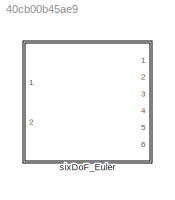
MODEL slx_40cb00b45ae9
KIND library
CONFIG AbsTol = auto
CONFIG EnableMultiTasking = off
CONFIG FixedStep = auto
CONFIG MaxStep = auto
CONFIG MinStep = auto
CONFIG RelTol = 1e-3
CONFIG SampleTimeConstraint = Unconstrained
CONFIG Solver = VariableStepAuto
CONFIG SolverName = VariableStepAuto
CONFIG StartTime = 0.0
CONFIG StopTime = 10.0
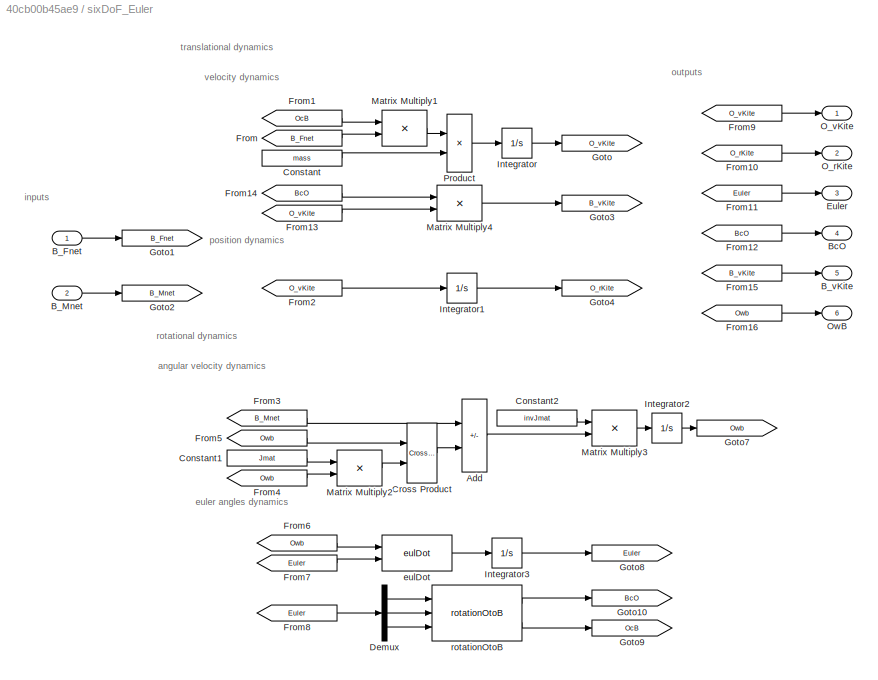
BLOCK [SubSystem] sixDoF_Euler
  Ports = [2, 6]
  RequestExecContextInheritance = off
BLOCK [Sum] sixDoF_Euler/Add
  IconShape = rectangular
  Inputs = +-
  Ports = [2, 1]
BLOCK [Inport] sixDoF_Euler/B_Fnet
BLOCK [Inport] sixDoF_Euler/B_Mnet
  Port = 2
BLOCK [Outport] sixDoF_Euler/B_vKite
  Port = 5
BLOCK [Outport] sixDoF_Euler/BcO
  Port = 4
BLOCK [Constant] sixDoF_Euler/Constant
  Value = mass
BLOCK [Constant] sixDoF_Euler/Constant1
  Value = Jmat
  VectorParams1D = off
BLOCK [Constant] sixDoF_Euler/Constant2
  Value = invJmat
  VectorParams1D = off
BLOCK [Reference] sixDoF_Euler/Cross Product  REF=vrlib/Utilities/Cross Product
  Ports = [2, 1]
  SourceBlock = vrlib/Utilities/Cross Product
  SourceProductBaseCode = SL
  SourceType = Cross Product
BLOCK [Demux] sixDoF_Euler/Demux
  Outputs = 3
  Ports = [1, 3]
BLOCK [Outport] sixDoF_Euler/Euler
  Port = 3
BLOCK [From] sixDoF_Euler/From
  GotoTag = B_Fnet
BLOCK [From] sixDoF_Euler/From1
  GotoTag = OcB
BLOCK [From] sixDoF_Euler/From10
  GotoTag = O_rKite
BLOCK [From] sixDoF_Euler/From11
  GotoTag = Euler
BLOCK [From] sixDoF_Euler/From12
  GotoTag = BcO
BLOCK [From] sixDoF_Euler/From13
  GotoTag = O_vKite
BLOCK [From] sixDoF_Euler/From14
  GotoTag = BcO
BLOCK [From] sixDoF_Euler/From15
  GotoTag = B_vKite
BLOCK [From] sixDoF_Euler/From16
  GotoTag = Owb
BLOCK [From] sixDoF_Euler/From2
  GotoTag = O_vKite
BLOCK [From] sixDoF_Euler/From3
  GotoTag = B_Mnet
BLOCK [From] sixDoF_Euler/From4
  GotoTag = Owb
BLOCK [From] sixDoF_Euler/From5
  GotoTag = Owb
BLOCK [From] sixDoF_Euler/From6
  GotoTag = Owb
BLOCK [From] sixDoF_Euler/From7
  GotoTag = Euler
BLOCK [From] sixDoF_Euler/From8
  GotoTag = Euler
BLOCK [From] sixDoF_Euler/From9
  GotoTag = O_vKite
BLOCK [Goto] sixDoF_Euler/Goto
  GotoTag = O_vKite
BLOCK [Goto] sixDoF_Euler/Goto1
  GotoTag = B_Fnet
BLOCK [Goto] sixDoF_Euler/Goto10
  GotoTag = BcO
BLOCK [Goto] sixDoF_Euler/Goto2
  GotoTag = B_Mnet
BLOCK [Goto] sixDoF_Euler/Goto3
  GotoTag = B_vKite
BLOCK [Goto] sixDoF_Euler/Goto4
  GotoTag = O_rKite
BLOCK [Goto] sixDoF_Euler/Goto7
  GotoTag = Owb
BLOCK [Goto] sixDoF_Euler/Goto8
  GotoTag = Euler
BLOCK [Goto] sixDoF_Euler/Goto9
  GotoTag = OcB
BLOCK [Integrator] sixDoF_Euler/Integrator
  InitialCondition = init_O_vKite
  Ports = [1, 1]
BLOCK [Integrator] sixDoF_Euler/Integrator1
  InitialCondition = init_O_rKite
  Ports = [1, 1]
BLOCK [Integrator] sixDoF_Euler/Integrator2
  InitialCondition = init_OwB
  Ports = [1, 1]
BLOCK [Integrator] sixDoF_Euler/Integrator3
  InitialCondition = init_Euler
  Ports = [1, 1]
BLOCK [Product] sixDoF_Euler/Matrix Multiply1
  Multiplication = Matrix(*)
  Ports = [2, 1]
BLOCK [Product] sixDoF_Euler/Matrix Multiply2
  Multiplication = Matrix(*)
  Ports = [2, 1]
BLOCK [Product] sixDoF_Euler/Matrix Multiply3
  Multiplication = Matrix(*)
  Ports = [2, 1]
BLOCK [Product] sixDoF_Euler/Matrix Multiply4
  Multiplication = Matrix(*)
  Ports = [2, 1]
BLOCK [Outport] sixDoF_Euler/O_rKite
  Port = 2
BLOCK [Outport] sixDoF_Euler/O_vKite
BLOCK [Outport] sixDoF_Euler/OwB
  Port = 6
BLOCK [Product] sixDoF_Euler/Product
  Inputs = */
  Ports = [2, 1]
BLOCK [Reference] sixDoF_Euler/eulDot  REF=eulDot/eulDot
  Ports = [2, 1]
  SourceBlock = eulDot/eulDot
  SourceType = SubSystem
BLOCK [Reference] sixDoF_Euler/rotationOtoB  REF=makeOcB_cl/rotationOtoB
  Ports = [3, 2]
  SourceBlock = makeOcB_cl/rotationOtoB
  SourceType = SubSystem
ANNOTATION sixDoF_Euler: angular velocity dynamics
ANNOTATION sixDoF_Euler: euler angles dynamics
ANNOTATION sixDoF_Euler: inputs
ANNOTATION sixDoF_Euler: outputs
ANNOTATION sixDoF_Euler: position dynamics
ANNOTATION sixDoF_Euler: rotational dynamics
ANNOTATION sixDoF_Euler: translational dynamics
ANNOTATION sixDoF_Euler: velocity dynamics
LINE sixDoF_Euler/Add:1 -> sixDoF_Euler/Matrix Multiply3:2
LINE sixDoF_Euler/B_Fnet:1 -> sixDoF_Euler/Goto1:1
LINE sixDoF_Euler/B_Mnet:1 -> sixDoF_Euler/Goto2:1
LINE sixDoF_Euler/Constant1:1 -> sixDoF_Euler/Matrix Multiply2:1
LINE sixDoF_Euler/Constant2:1 -> sixDoF_Euler/Matrix Multiply3:1
LINE sixDoF_Euler/Constant:1 -> sixDoF_Euler/Product:2
LINE sixDoF_Euler/Cross Product:1 -> sixDoF_Euler/Add:2
LINE sixDoF_Euler/Demux:1 -> sixDoF_Euler/rotationOtoB:1
LINE sixDoF_Euler/Demux:2 -> sixDoF_Euler/rotationOtoB:2
LINE sixDoF_Euler/Demux:3 -> sixDoF_Euler/rotationOtoB:3
LINE sixDoF_Euler/From10:1 -> sixDoF_Euler/O_rKite:1
LINE sixDoF_Euler/From11:1 -> sixDoF_Euler/Euler:1
LINE sixDoF_Euler/From12:1 -> sixDoF_Euler/BcO:1
LINE sixDoF_Euler/From13:1 -> sixDoF_Euler/Matrix Multiply4:2
LINE sixDoF_Euler/From14:1 -> sixDoF_Euler/Matrix Multiply4:1
LINE sixDoF_Euler/From15:1 -> sixDoF_Euler/B_vKite:1
LINE sixDoF_Euler/From16:1 -> sixDoF_Euler/OwB:1
LINE sixDoF_Euler/From1:1 -> sixDoF_Euler/Matrix Multiply1:1
LINE sixDoF_Euler/From2:1 -> sixDoF_Euler/Integrator1:1
LINE sixDoF_Euler/From3:1 -> sixDoF_Euler/Add:1
LINE sixDoF_Euler/From4:1 -> sixDoF_Euler/Matrix Multiply2:2
LINE sixDoF_Euler/From5:1 -> sixDoF_Euler/Cross Product:1
LINE sixDoF_Euler/From6:1 -> sixDoF_Euler/eulDot:1
LINE sixDoF_Euler/From7:1 -> sixDoF_Euler/eulDot:2
LINE sixDoF_Euler/From8:1 -> sixDoF_Euler/Demux:1
LINE sixDoF_Euler/From9:1 -> sixDoF_Euler/O_vKite:1
LINE sixDoF_Euler/From:1 -> sixDoF_Euler/Matrix Multiply1:2
LINE sixDoF_Euler/Integrator1:1 -> sixDoF_Euler/Goto4:1
LINE sixDoF_Euler/Integrator2:1 -> sixDoF_Euler/Goto7:1
LINE sixDoF_Euler/Integrator3:1 -> sixDoF_Euler/Goto8:1
LINE sixDoF_Euler/Integrator:1 -> sixDoF_Euler/Goto:1
LINE sixDoF_Euler/Matrix Multiply1:1 -> sixDoF_Euler/Product:1
LINE sixDoF_Euler/Matrix Multiply2:1 -> sixDoF_Euler/Cross Product:2
LINE sixDoF_Euler/Matrix Multiply3:1 -> sixDoF_Euler/Integrator2:1
LINE sixDoF_Euler/Matrix Multiply4:1 -> sixDoF_Euler/Goto3:1
LINE sixDoF_Euler/Product:1 -> sixDoF_Euler/Integrator:1
LINE sixDoF_Euler/eulDot:1 -> sixDoF_Euler/Integrator3:1
LINE sixDoF_Euler/rotationOtoB:1 -> sixDoF_Euler/Goto10:1
LINE sixDoF_Euler/rotationOtoB:2 -> sixDoF_Euler/Goto9:1
